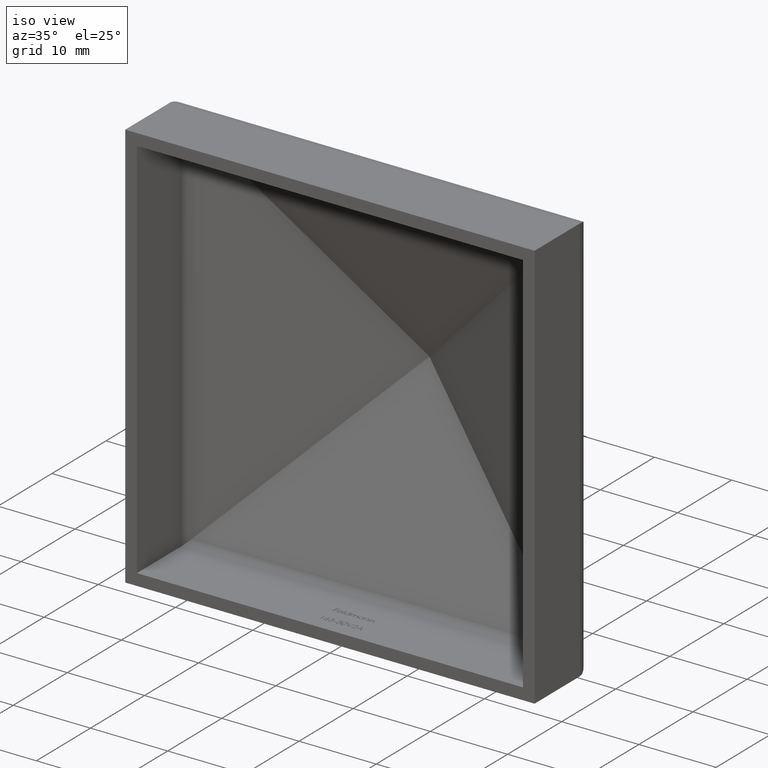
[diagram: clean part render]
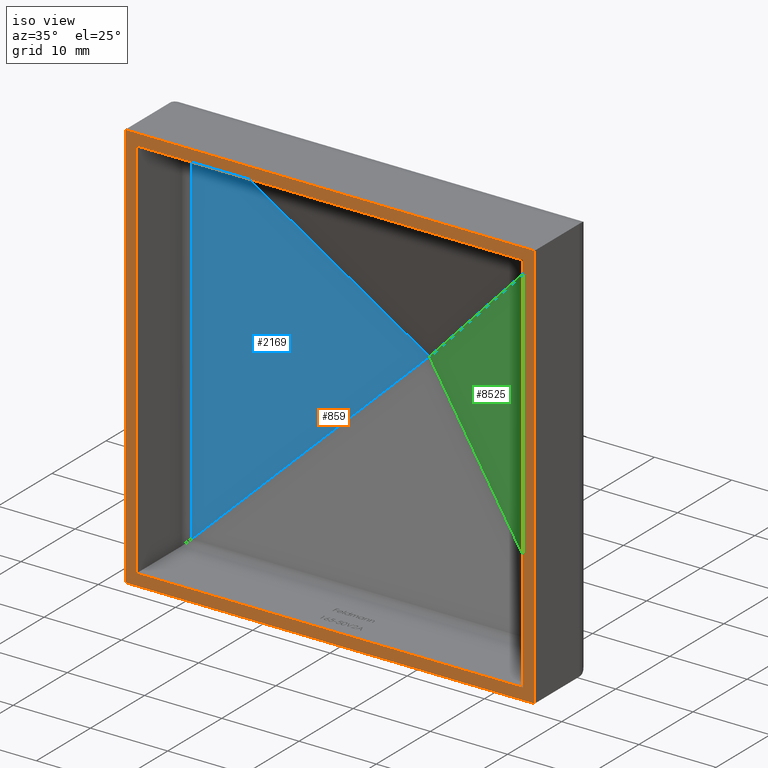
[diagram: same view with three faces highlighted in distinct colors, each labeled with its STEP entity id]
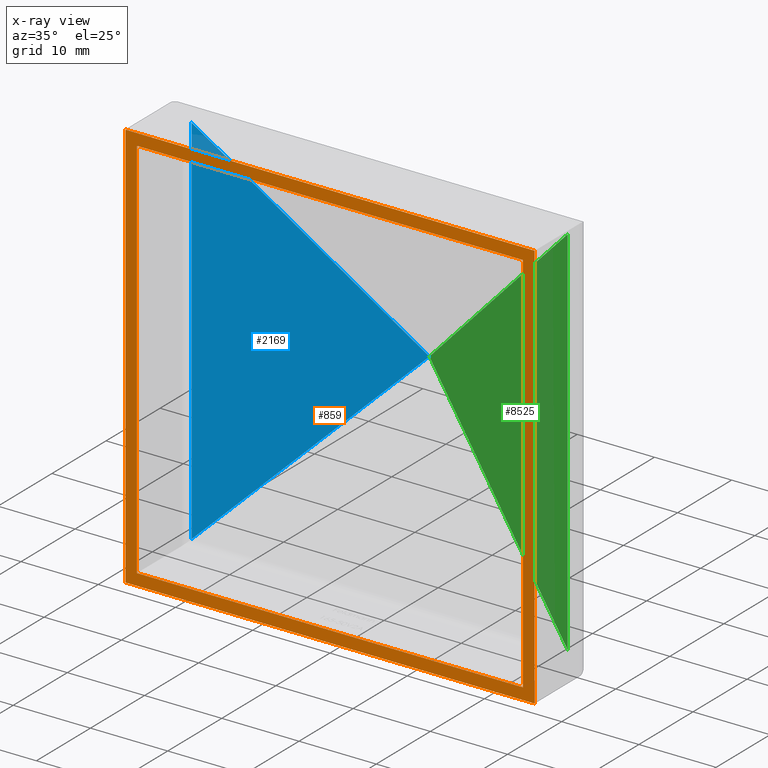
[diagram: x-ray of the same camera — body ghosted, the three highlighted faces saturated]
A machine part, iso view with three faces highlighted in distinct colors.
The next image is the same camera in x-ray (body ghosted, the three faces saturated) — at least one of them is partly hidden behind the body in this view.
Their STEP definitions:

[orange] entity #859 — the highlighted planar face has unit normal (0, 1, 0).
#253 = VERTEX_POINT ( 'NONE', #11873 ) ;
#390 = ORIENTED_EDGE ( 'NONE', *, *, #5079, .F. ) ;
#429 = CARTESIAN_POINT ( 'NONE',  ( -26.50000000000000000, 0.000000000000000000, -24.99999999999999289 ) ) ;
#591 = CARTESIAN_POINT ( 'NONE',  ( 26.49999999999999645, 0.000000000000000000, -26.49999999999999645 ) ) ;
#613 = CARTESIAN_POINT ( 'NONE',  ( -26.50000000000000000, 0.000000000000000000, -26.49999999999999645 ) ) ;
#859 = ADVANCED_FACE ( 'NONE', ( #3975, #4877 ), #11328, .F. ) ;
#950 = AXIS2_PLACEMENT_3D ( 'NONE', #1005, #8542, #11998 ) ;
#1005 = CARTESIAN_POINT ( 'NONE',  ( 0.000000000000000000, 0.000000000000000000, 0.000000000000000000 ) ) ;
#1979 = VERTEX_POINT ( 'NONE', #4930 ) ;
#2270 = VECTOR ( 'NONE', #7266, 1000.000000000000000 ) ;
#2347 = CARTESIAN_POINT ( 'NONE',  ( -26.49999999999999289, 0.000000000000000000, 26.50000000000000355 ) ) ;
#2355 = VECTOR ( 'NONE', #11747, 1000.000000000000000 ) ;
#2680 = EDGE_CURVE ( 'NONE', #6519, #253, #8783, .T. ) ;
#3083 = CARTESIAN_POINT ( 'NONE',  ( 24.99999999999999289, 0.000000000000000000, -26.49999999999999645 ) ) ;
#3228 = DIRECTION ( 'NONE',  ( -1.000000000000000000, 0.000000000000000000, 0.000000000000000000 ) ) ;
#3729 = VERTEX_POINT ( 'NONE', #9572 ) ;
#3755 = VECTOR ( 'NONE', #8539, 1000.000000000000000 ) ;
#3975 = FACE_BOUND ( 'NONE', #12024, .T. ) ;
#4241 = CARTESIAN_POINT ( 'NONE',  ( -26.49999999999999289, 0.000000000000000000, 25.00000000000000000 ) ) ;
#4287 = VERTEX_POINT ( 'NONE', #2347 ) ;
#4577 = ORIENTED_EDGE ( 'NONE', *, *, #11022, .T. ) ;
#4877 = FACE_OUTER_BOUND ( 'NONE', #5262, .T. ) ;
#4911 = LINE ( 'NONE', #3083, #11784 ) ;
#4930 = CARTESIAN_POINT ( 'NONE',  ( 25.00000000000000355, 0.000000000000000000, 25.00000000000000000 ) ) ;
#5079 = EDGE_CURVE ( 'NONE', #8236, #6519, #8896, .T. ) ;
#5262 = EDGE_LOOP ( 'NONE', ( #390, #9505, #10719, #6980 ) ) ;
#5460 = DIRECTION ( 'NONE',  ( 1.309225264888156377E-16, 0.000000000000000000, 1.000000000000000000 ) ) ;
#5476 = VECTOR ( 'NONE', #5460, 1000.000000000000000 ) ;
#5665 = VECTOR ( 'NONE', #11392, 1000.000000000000000 ) ;
#5694 = CARTESIAN_POINT ( 'NONE',  ( 26.50000000000000711, 0.000000000000000000, 26.50000000000000355 ) ) ;
#5802 = VECTOR ( 'NONE', #9961, 1000.000000000000000 ) ;
#6519 = VERTEX_POINT ( 'NONE', #7755 ) ;
#6717 = CARTESIAN_POINT ( 'NONE',  ( -26.50000000000000000, 0.000000000000000000, -26.49999999999999645 ) ) ;
#6909 = EDGE_CURVE ( 'NONE', #4287, #8236, #8143, .T. ) ;
#6980 = ORIENTED_EDGE ( 'NONE', *, *, #2680, .F. ) ;
#7266 = DIRECTION ( 'NONE',  ( -1.963837897332234688E-16, -0.000000000000000000, -1.000000000000000000 ) ) ;
#7386 = LINE ( 'NONE', #8962, #2355 ) ;
#7755 = CARTESIAN_POINT ( 'NONE',  ( 26.49999999999999645, 0.000000000000000000, -26.49999999999999645 ) ) ;
#7893 = EDGE_CURVE ( 'NONE', #1979, #9416, #4911, .T. ) ;
#7977 = LINE ( 'NONE', #613, #5476 ) ;
#8143 = LINE ( 'NONE', #9280, #5665 ) ;
#8236 = VERTEX_POINT ( 'NONE', #5694 ) ;
#8489 = EDGE_CURVE ( 'NONE', #10783, #1979, #9745, .T. ) ;
#8539 = DIRECTION ( 'NONE',  ( -1.000000000000000000, -0.000000000000000000, -0.000000000000000000 ) ) ;
#8542 = DIRECTION ( 'NONE',  ( 0.000000000000000000, 1.000000000000000000, 0.000000000000000000 ) ) ;
#8595 = EDGE_CURVE ( 'NONE', #253, #4287, #7977, .T. ) ;
#8661 = ORIENTED_EDGE ( 'NONE', *, *, #8489, .T. ) ;
#8699 = VECTOR ( 'NONE', #3228, 1000.000000000000000 ) ;
#8783 = LINE ( 'NONE', #6717, #3755 ) ;
#8896 = LINE ( 'NONE', #591, #2270 ) ;
#8962 = CARTESIAN_POINT ( 'NONE',  ( -24.99999999999999645, 0.000000000000000000, -26.49999999999999645 ) ) ;
#9280 = CARTESIAN_POINT ( 'NONE',  ( -26.49999999999999289, 0.000000000000000000, 26.50000000000000355 ) ) ;
#9391 = ORIENTED_EDGE ( 'NONE', *, *, #11510, .T. ) ;
#9412 = LINE ( 'NONE', #429, #8699 ) ;
#9416 = VERTEX_POINT ( 'NONE', #10243 ) ;
#9505 = ORIENTED_EDGE ( 'NONE', *, *, #6909, .F. ) ;
#9572 = CARTESIAN_POINT ( 'NONE',  ( -24.99999999999999645, 0.000000000000000000, -24.99999999999999289 ) ) ;
#9661 = ORIENTED_EDGE ( 'NONE', *, *, #7893, .T. ) ;
#9745 = LINE ( 'NONE', #4241, #5802 ) ;
#9961 = DIRECTION ( 'NONE',  ( 1.000000000000000000, -0.000000000000000000, 0.000000000000000000 ) ) ;
#10243 = CARTESIAN_POINT ( 'NONE',  ( 24.99999999999999289, 0.000000000000000000, -24.99999999999999289 ) ) ;
#10719 = ORIENTED_EDGE ( 'NONE', *, *, #8595, .F. ) ;
#10783 = VERTEX_POINT ( 'NONE', #12173 ) ;
#11022 = EDGE_CURVE ( 'NONE', #3729, #10783, #7386, .T. ) ;
#11328 = PLANE ( 'NONE',  #950 ) ;
#11392 = DIRECTION ( 'NONE',  ( 1.000000000000000000, 0.000000000000000000, 0.000000000000000000 ) ) ;
#11510 = EDGE_CURVE ( 'NONE', #9416, #3729, #9412, .T. ) ;
#11597 = DIRECTION ( 'NONE',  ( -1.963837897332234935E-16, 0.000000000000000000, -1.000000000000000000 ) ) ;
#11747 = DIRECTION ( 'NONE',  ( 1.309225264888156377E-16, -0.000000000000000000, 1.000000000000000000 ) ) ;
#11784 = VECTOR ( 'NONE', #11597, 1000.000000000000000 ) ;
#11873 = CARTESIAN_POINT ( 'NONE',  ( -26.50000000000000000, 0.000000000000000000, -26.49999999999999645 ) ) ;
#11998 = DIRECTION ( 'NONE',  ( 0.000000000000000000, -0.000000000000000000, 1.000000000000000000 ) ) ;
#12024 = EDGE_LOOP ( 'NONE', ( #8661, #9661, #9391, #4577 ) ) ;
#12173 = CARTESIAN_POINT ( 'NONE',  ( -24.99999999999998934, 0.000000000000000000, 25.00000000000000000 ) ) ;

[blue] entity #2169 — the highlighted planar face has unit normal (0.3533, -0.9355, 0).
#280 = VECTOR ( 'NONE', #4872, 1000.000000000000000 ) ;
#421 = LINE ( 'NONE', #2737, #8829 ) ;
#2169 = ADVANCED_FACE ( 'NONE', ( #3480 ), #11810, .T. ) ;
#2211 = LINE ( 'NONE', #8609, #280 ) ;
#2386 = EDGE_LOOP ( 'NONE', ( #10244, #8190, #7330 ) ) ;
#2427 = CARTESIAN_POINT ( 'NONE',  ( -24.35327022988071732, 9.207260954021604604, -26.49999999999999645 ) ) ;
#2698 = CARTESIAN_POINT ( 'NONE',  ( 1.734723475976807094E-15, 18.40350818686158618, 3.469446951953614189E-15 ) ) ;
#2737 = CARTESIAN_POINT ( 'NONE',  ( -25.35519965630890482, 8.828913790444950394, -25.35519965630889416 ) ) ;
#3150 = CARTESIAN_POINT ( 'NONE',  ( -24.35327022988071732, 9.207260954021604604, -24.35327022988070667 ) ) ;
#3371 = DIRECTION ( 'NONE',  ( 0.3532702298807259278, -0.9355213224080032308, 0.000000000000000000 ) ) ;
#3480 = FACE_OUTER_BOUND ( 'NONE', #2386, .T. ) ;
#4338 = VERTEX_POINT ( 'NONE', #5667 ) ;
#4492 = AXIS2_PLACEMENT_3D ( 'NONE', #2427, #3371, #6283 ) ;
#4872 = DIRECTION ( 'NONE',  ( -0.000000000000000000, 0.000000000000000000, 1.000000000000000000 ) ) ;
#5352 = EDGE_CURVE ( 'NONE', #11214, #4338, #10052, .T. ) ;
#5667 = CARTESIAN_POINT ( 'NONE',  ( -24.35327022988072798, 9.207260954021599275, 24.35327022988075640 ) ) ;
#5934 = CARTESIAN_POINT ( 'NONE',  ( -0.6188493527757333856, 18.16981917531249735, 0.6188493527757368273 ) ) ;
#6283 = DIRECTION ( 'NONE',  ( 0.9355213224080031198, 0.3532702298807258723, 0.000000000000000000 ) ) ;
#7330 = ORIENTED_EDGE ( 'NONE', *, *, #11404, .F. ) ;
#7751 = VECTOR ( 'NONE', #8738, 1000.000000000000000 ) ;
#8190 = ORIENTED_EDGE ( 'NONE', *, *, #5352, .T. ) ;
#8609 = CARTESIAN_POINT ( 'NONE',  ( -24.35327022988071732, 9.207260954021604604, -26.49999999999999645 ) ) ;
#8738 = DIRECTION ( 'NONE',  ( -0.6831717138704592740, -0.2579783299709449418, 0.6831717138704599401 ) ) ;
#8829 = VECTOR ( 'NONE', #10275, 1000.000000000000000 ) ;
#10052 = LINE ( 'NONE', #5934, #7751 ) ;
#10244 = ORIENTED_EDGE ( 'NONE', *, *, #11364, .T. ) ;
#10275 = DIRECTION ( 'NONE',  ( 0.6831717138704597181, 0.2579783299709451083, 0.6831717138704593850 ) ) ;
#11214 = VERTEX_POINT ( 'NONE', #2698 ) ;
#11364 = EDGE_CURVE ( 'NONE', #11591, #11214, #421, .T. ) ;
#11404 = EDGE_CURVE ( 'NONE', #11591, #4338, #2211, .T. ) ;
#11591 = VERTEX_POINT ( 'NONE', #3150 ) ;
#11810 = PLANE ( 'NONE',  #4492 ) ;

[green] entity #8525 — the highlighted planar face has unit normal (-0.3533, -0.9355, 0).
#65 = CARTESIAN_POINT ( 'NONE',  ( -12.63192210338459276, 23.17355662767296920, -12.63192210338458921 ) ) ;
#523 = EDGE_CURVE ( 'NONE', #6844, #11214, #5611, .T. ) ;
#684 = DIRECTION ( 'NONE',  ( 0.9355213224080032308, -0.3532702298807258168, 0.000000000000000000 ) ) ;
#1025 = ORIENTED_EDGE ( 'NONE', *, *, #523, .T. ) ;
#1280 = DIRECTION ( 'NONE',  ( 0.6831717138704594960, -0.2579783299709449973, -0.6831717138704596071 ) ) ;
#1653 = AXIS2_PLACEMENT_3D ( 'NONE', #8164, #10122, #684 ) ;
#1999 = VECTOR ( 'NONE', #4627, 1000.000000000000000 ) ;
#2096 = LINE ( 'NONE', #8646, #4741 ) ;
#2698 = CARTESIAN_POINT ( 'NONE',  ( 1.734723475976807094E-15, 18.40350818686158618, 3.469446951953614189E-15 ) ) ;
#3171 = ORIENTED_EDGE ( 'NONE', *, *, #7837, .T. ) ;
#3432 = EDGE_CURVE ( 'NONE', #4224, #6844, #8035, .T. ) ;
#3534 = PLANE ( 'NONE',  #1653 ) ;
#3666 = CARTESIAN_POINT ( 'NONE',  ( 24.35327022988073153, 9.207260954021602828, -26.49999999999999645 ) ) ;
#3719 = CARTESIAN_POINT ( 'NONE',  ( 24.35327022988074219, 9.207260954021601052, 24.35327022988073509 ) ) ;
#4224 = VERTEX_POINT ( 'NONE', #5218 ) ;
#4627 = DIRECTION ( 'NONE',  ( -0.000000000000000000, -0.000000000000000000, 1.000000000000000000 ) ) ;
#4741 = VECTOR ( 'NONE', #1280, 1000.000000000000114 ) ;
#5218 = CARTESIAN_POINT ( 'NONE',  ( 24.35327022988072798, 9.207260954021602828, -24.35327022988073153 ) ) ;
#5611 = LINE ( 'NONE', #65, #12060 ) ;
#6687 = EDGE_LOOP ( 'NONE', ( #3171, #7184, #1025 ) ) ;
#6844 = VERTEX_POINT ( 'NONE', #3719 ) ;
#7184 = ORIENTED_EDGE ( 'NONE', *, *, #3432, .T. ) ;
#7575 = FACE_OUTER_BOUND ( 'NONE', #6687, .T. ) ;
#7837 = EDGE_CURVE ( 'NONE', #11214, #4224, #2096, .T. ) ;
#8035 = LINE ( 'NONE', #3666, #1999 ) ;
#8164 = CARTESIAN_POINT ( 'NONE',  ( -0.4945783218330158104, 18.59027014862880023, -26.49999999999999645 ) ) ;
#8525 = ADVANCED_FACE ( 'NONE', ( #7575 ), #3534, .T. ) ;
#8646 = CARTESIAN_POINT ( 'NONE',  ( 12.10442820014856657, 13.83265124280542757, -12.10442820014856125 ) ) ;
#9527 = DIRECTION ( 'NONE',  ( -0.6831717138704596071, 0.2579783299709450528, -0.6831717138704594960 ) ) ;
#10122 = DIRECTION ( 'NONE',  ( -0.3532702298807258168, -0.9355213224080032308, 0.000000000000000000 ) ) ;
#11214 = VERTEX_POINT ( 'NONE', #2698 ) ;
#12060 = VECTOR ( 'NONE', #9527, 1000.000000000000114 ) ;